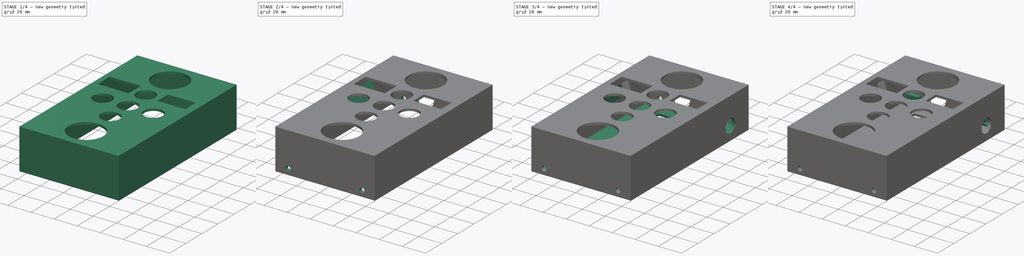
[diagram: build sequence overview — one tinted view per stage of 4, left to right]
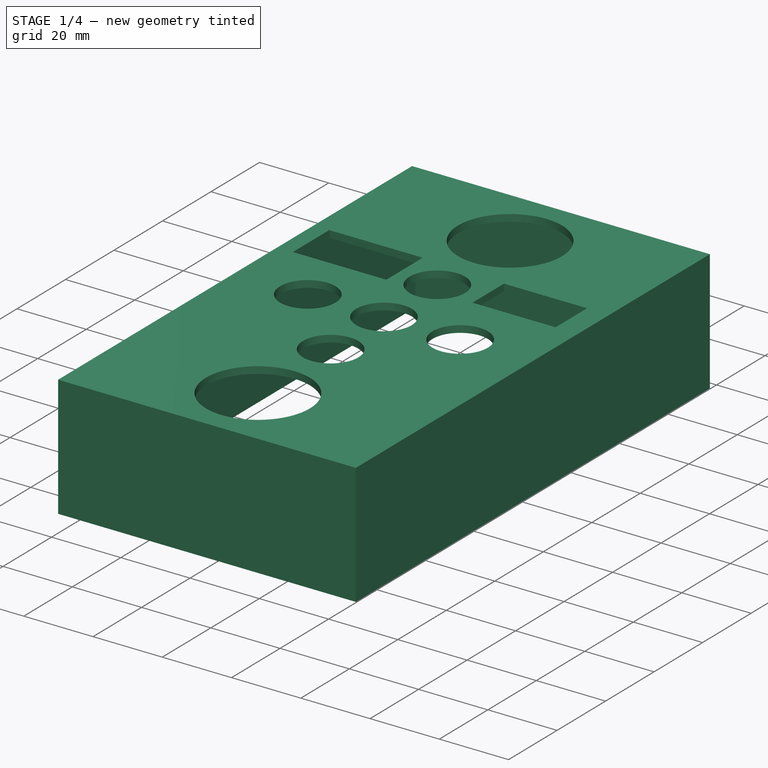
[diagram: stage 1 of 4 — iso view after this stage's code; geometry added in this stage tinted green]
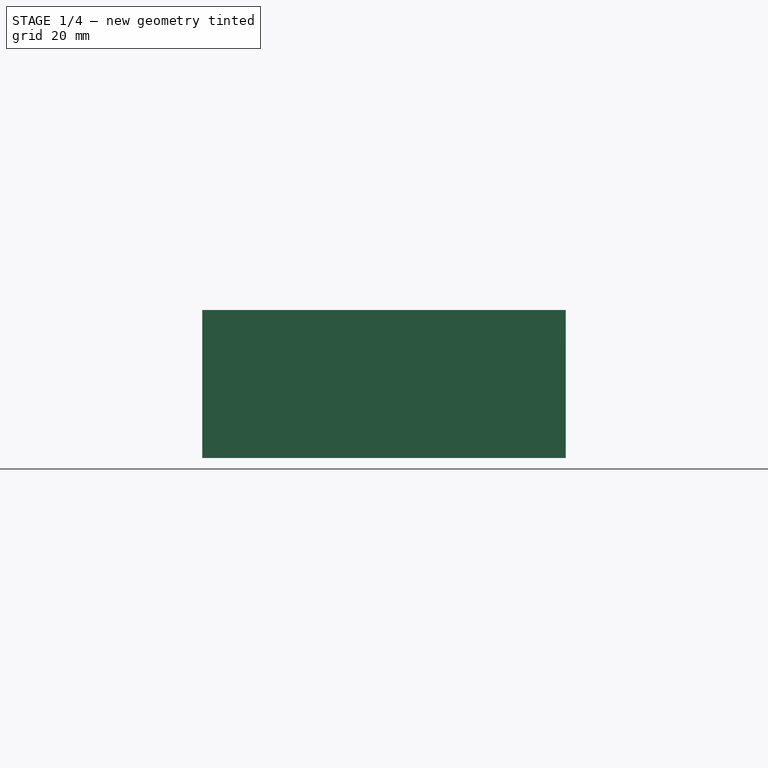
[diagram: stage 1 of 4 — front view after this stage's code; geometry added in this stage tinted green]
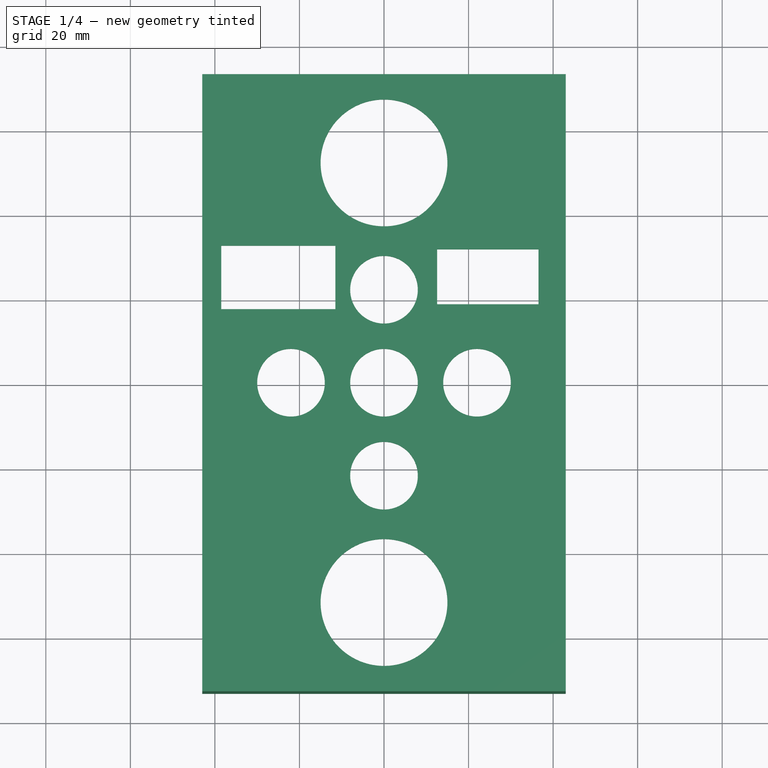
[diagram: stage 1 of 4 — top view after this stage's code; geometry added in this stage tinted green]
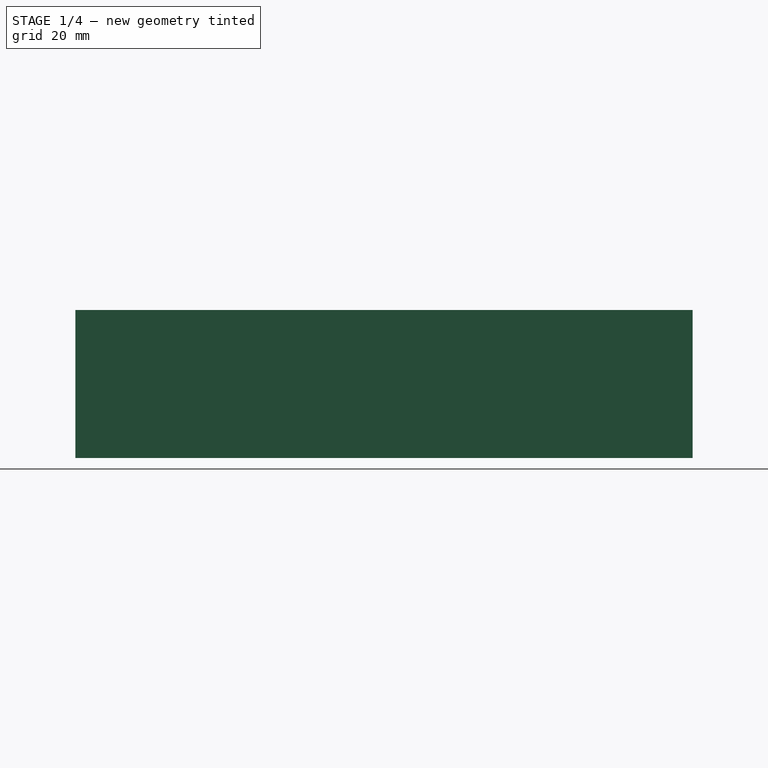
[diagram: stage 1 of 4 — right view after this stage's code; geometry added in this stage tinted green]
FCSTD DOCUMENT  (FreeCAD 1.0R39319 (Git))
Label: Backend
License: All rights reserved
LicenseURL: https://en.wikipedia.org/wiki/All_rights_reserved
objects: Sketcher::SketchObject×11, PartDesign::Pocket×7, PartDesign::Pad×4, PartDesign::Body×2, PartDesign::Chamfer×1, TechDraw::DrawSVGTemplate×1, TechDraw::DrawProjGroupItem×1, TechDraw::DrawPage×1
note: 60 computed .brp shape members not serialized (recipe doc carries the construction recipe); baked Part::Feature solids carry a one-line shape summary decoded from their .brp

FEATURE [Sketcher::SketchObject] Sketch
  ArcFitTolerance = 1e-06
  AttachmentSupport = -> [XY_Plane]
  FullyConstrained = false
  MakeInternals = false
  MapMode = 5
  sketch-geometry (19):
    g0: LineSegment StartX=-43 StartY=73 StartZ=0 EndX=-43 EndY=-73 EndZ=0
    g1: LineSegment StartX=-43 StartY=-73 StartZ=0 EndX=43 EndY=-73 EndZ=0
    g2: LineSegment StartX=43 StartY=-73 StartZ=0 EndX=43 EndY=73 EndZ=0
    g3: LineSegment StartX=43 StartY=73 StartZ=0 EndX=-43 EndY=73 EndZ=0
    g4: Circle CenterX=-22 CenterY=0 CenterZ=0 NormalX=0 NormalY=0 NormalZ=1 AngleXU=0 Radius=8
    g5: Circle CenterX=22 CenterY=0 CenterZ=0 NormalX=0 NormalY=0 NormalZ=1 AngleXU=0 Radius=8
    g6: Circle CenterX=0 CenterY=-22 CenterZ=0 NormalX=0 NormalY=0 NormalZ=1 AngleXU=0 Radius=8
    g7: Circle CenterX=0 CenterY=22 CenterZ=0 NormalX=0 NormalY=0 NormalZ=1 AngleXU=0 Radius=8
    g8: Circle CenterX=0 CenterY=-52 CenterZ=0 NormalX=0 NormalY=0 NormalZ=1 AngleXU=0 Radius=15
    g9: Circle CenterX=0 CenterY=52 CenterZ=0 NormalX=0 NormalY=0 NormalZ=1 AngleXU=0 Radius=15
    g10: LineSegment StartX=-38.5 StartY=32.4009 StartZ=0 EndX=-38.5 EndY=17.4009 EndZ=0
    g11: LineSegment StartX=-38.5 StartY=17.4009 StartZ=0 EndX=-11.5 EndY=17.4009 EndZ=0
    g12: LineSegment StartX=-11.5 StartY=17.4009 StartZ=0 EndX=-11.5 EndY=32.4009 EndZ=0
    g13: LineSegment StartX=-11.5 StartY=32.4009 StartZ=0 EndX=-38.5 EndY=32.4009 EndZ=0
    g14: LineSegment StartX=12.5603 StartY=31.5507 StartZ=0 EndX=12.5603 EndY=18.5507 EndZ=0
    g15: LineSegment StartX=12.5603 StartY=18.5507 StartZ=0 EndX=36.5603 EndY=18.5507 EndZ=0
    g16: LineSegment StartX=36.5603 StartY=18.5507 StartZ=0 EndX=36.5603 EndY=31.5507 EndZ=0
    g17: LineSegment StartX=36.5603 StartY=31.5507 StartZ=0 EndX=12.5603 EndY=31.5507 EndZ=0
    g18: Circle CenterX=0 CenterY=0 CenterZ=0 NormalX=0 NormalY=0 NormalZ=1 AngleXU=0 Radius=8
  constraints (50):
    c: Coincident(g0,g1)
    c: Coincident(g1,g2)
    c: Coincident(g2,g3)
    c: Coincident(g3,g0)
    c: Vertical(g0)
    c: Vertical(g2)
    c: Horizontal(g1)
    c: Horizontal(g3)
    c: DistanceX(g3,g3) = 86
    c: DistanceY(g0,g0) = 146
    c: Symmetric(g0,g1,g-1)
    c: Diameter(g6) = 16
    c: Equal(g5,g7)
    c: Equal(g7,g6)
    c: Equal(g6,g4)
    c: Equal(g8,g9)
    c: Diameter(g9) = 30
    c: Coincident(g10,g11)
    c: Coincident(g11,g12)
    c: Coincident(g12,g13)
    c: Coincident(g13,g10)
    c: Vertical(g10)
    c: Vertical(g12)
    c: Horizontal(g11)
    c: Horizontal(g13)
    c: Distance(g13,g13) = 27
    c: DistanceY(g10,g10) = 15
    c: Coincident(g14,g15)
    c: Coincident(g15,g16)
    c: Coincident(g16,g17)
    c: Coincident(g17,g14)
    c: Vertical(g14)
    c: Vertical(g16)
    c: Horizontal(g15)
    c: Horizontal(g17)
    c: DistanceX(g17,g17) = 24
    c: DistanceY(g14,g14) = 13
    c: Equal(g18,g4)
    c: PointOnObject(g7,g-2)
    c: PointOnObject(g6,g-2)
    c: Horizontal(g18,g5)
    c: Distance(g7,g18) = 22
    c: DistanceY(g6,g18) = 22
    c: DistanceX(g4,g18) = 22
    c: DistanceX(g18,g5) = 22
    c: PointOnObject(g8,g-2)
    c: DistanceY(g8,g6) = 30
    c: PointOnObject(g9,g-2)
    c: DistanceY(g7,g9) = 30
    c: Coincident(g18,g-1)
FEATURE [PartDesign::Pad] Pad
  Direction = (0,0,1)
  Length = 35
  Length2 = 10
  Profile = -> Sketch
  ReferenceAxis = -> Sketch [N_Axis]
  Refine = true
  Suppressed = false
  Type = 0
FEATURE [Sketcher::SketchObject] Sketch001
  ArcFitTolerance = 1e-06
  AttachmentSupport = -> [XY_Plane]
  FullyConstrained = true
  MakeInternals = false
  MapMode = 5
  sketch-geometry (4):
    g0: LineSegment StartX=-40 StartY=70 StartZ=0 EndX=-40 EndY=-70 EndZ=0
    g1: LineSegment StartX=-40 StartY=-70 StartZ=0 EndX=40 EndY=-70 EndZ=0
    g2: LineSegment StartX=40 StartY=-70 StartZ=0 EndX=40 EndY=70 EndZ=0
    g3: LineSegment StartX=40 StartY=70 StartZ=0 EndX=-40 EndY=70 EndZ=0
  constraints (11):
    c: Coincident(g0,g1)
    c: Coincident(g1,g2)
    c: Coincident(g2,g3)
    c: Coincident(g3,g0)
    c: Vertical(g0)
    c: Vertical(g2)
    c: Horizontal(g1)
    c: Horizontal(g3)
    c: DistanceX(g3,g3) = 80
    c: DistanceY(g2,g2) = 140
    c: Symmetric(g0,g1,g-1)
FEATURE [PartDesign::Pocket] Pocket
  BaseFeature = -> Pad
  Direction = (0,0,-1)
  Length = 33
  Length2 = 5
  Profile = -> Sketch001
  ReferenceAxis = -> Sketch001 [N_Axis]
  Refine = true
  Reversed = true
  Suppressed = false
  Type = 0
FEATURE [Sketcher::SketchObject] Sketch002
  ArcFitTolerance = 1e-06
  AttachmentSupport = -> [XY_Plane]
  FullyConstrained = true
  MakeInternals = false
  MapMode = 5
  sketch-geometry (4):
    g0: LineSegment StartX=-39 StartY=54 StartZ=0 EndX=-39 EndY=-54 EndZ=0
    g1: LineSegment StartX=-39 StartY=-54 StartZ=0 EndX=39 EndY=-54 EndZ=0
    g2: LineSegment StartX=39 StartY=-54 StartZ=0 EndX=39 EndY=54 EndZ=0
    g3: LineSegment StartX=39 StartY=54 StartZ=0 EndX=-39 EndY=54 EndZ=0
  constraints (11):
    c: Coincident(g0,g1)
    c: Coincident(g1,g2)
    c: Coincident(g2,g3)
    c: Coincident(g3,g0)
    c: Vertical(g0)
    c: Vertical(g2)
    c: Horizontal(g1)
    c: Horizontal(g3)
    c: DistanceX(g3,g3) = 78
    c: DistanceY(g2,g2) = 108
    c: Symmetric(g0,g1,g-1)
FEATURE [PartDesign::Pocket] Pocket001
  BaseFeature = -> Pocket
  Direction = (0,0,-1)
  Length = 25
  Length2 = 5
  Profile = -> Sketch002
  ReferenceAxis = -> Sketch002 [N_Axis]
  Refine = true
  Reversed = true
  Suppressed = false
  Type = 0
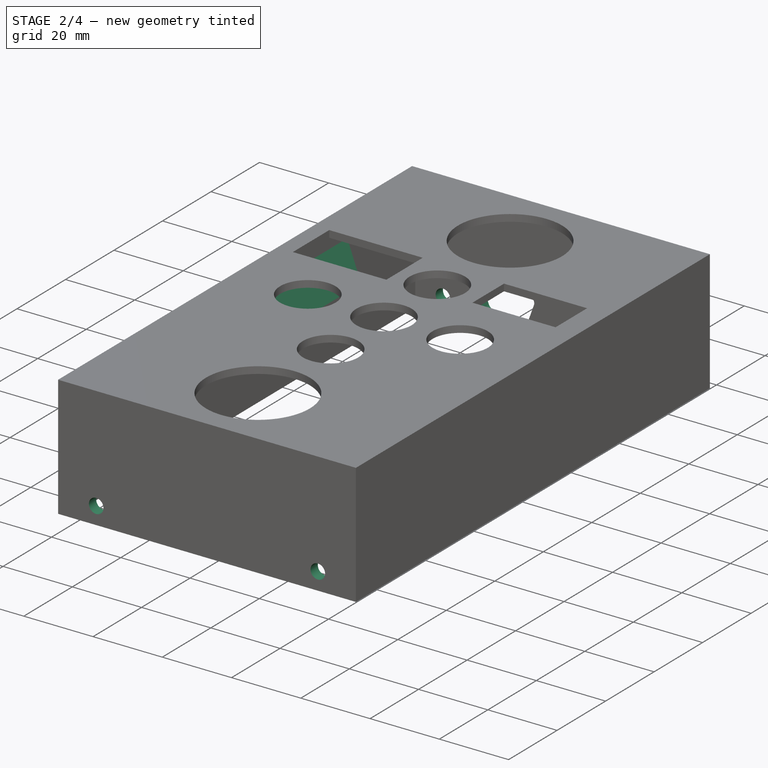
[diagram: stage 2 of 4 — iso view after this stage's code; geometry added in this stage tinted green]
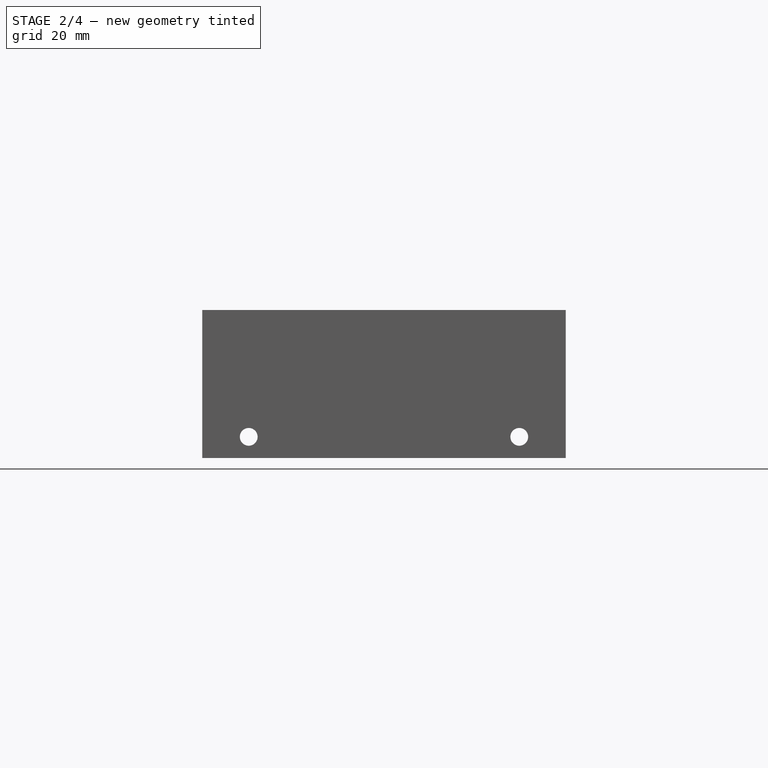
[diagram: stage 2 of 4 — front view after this stage's code; geometry added in this stage tinted green]
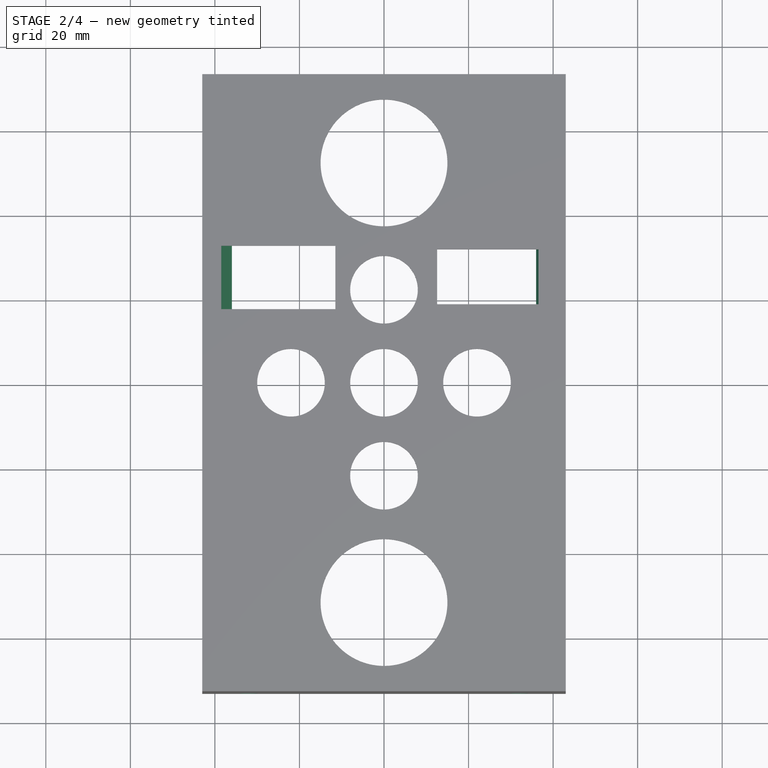
[diagram: stage 2 of 4 — top view after this stage's code; geometry added in this stage tinted green]
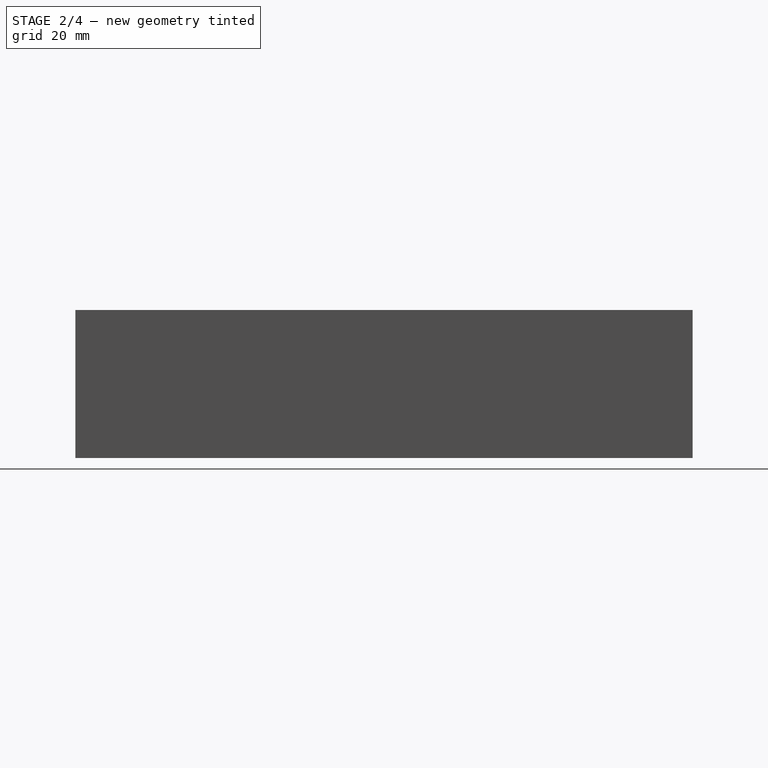
[diagram: stage 2 of 4 — right view after this stage's code; geometry added in this stage tinted green]
FEATURE [Sketcher::SketchObject] Sketch003
  ArcFitTolerance = 1e-06
  AttachmentSupport = -> [XZ_Plane]
  FullyConstrained = false
  MakeInternals = false
  MapMode = 5
  Placement = pos=(0,0,0) rot=(1,0,0;1.5708rad)
  sketch-geometry (9):
    g0: LineSegment StartX=-21.1819 StartY=11.8603 StartZ=0 EndX=-7.18187 EndY=11.8603 EndZ=0
    g1: ArcOfCircle CenterX=-7.18187 CenterY=10.3078 CenterZ=0 NormalX=0 NormalY=0 NormalZ=1 AngleXU=0 Radius=1.55256 StartAngle=5.93412 EndAngle=7.85398
    g2: LineSegment StartX=-5.72294 StartY=9.77677 StartZ=0 EndX=-7.50452 EndY=4.8819 EndZ=0
    g3: ArcOfCircle CenterX=-8.96346 CenterY=5.4129 CenterZ=0 NormalX=0 NormalY=0 NormalZ=1 AngleXU=0 Radius=1.55256 StartAngle=4.71239 EndAngle=5.93412
    g4: LineSegment StartX=-8.96346 StartY=3.86034 StartZ=0 EndX=-19.4003 EndY=3.86034 EndZ=0
    g5: ArcOfCircle CenterX=-19.4003 CenterY=5.4129 CenterZ=0 NormalX=0 NormalY=0 NormalZ=1 AngleXU=0 Radius=1.55256 StartAngle=3.49066 EndAngle=4.71239
    g6: LineSegment StartX=-20.8592 StartY=4.8819 StartZ=0 EndX=-22.6408 EndY=9.77677 EndZ=0
    g7: ArcOfCircle CenterX=-21.1819 CenterY=10.3078 CenterZ=0 NormalX=0 NormalY=0 NormalZ=1 AngleXU=0 Radius=1.55256 StartAngle=1.5708 EndAngle=3.49066
    g8: Circle CenterX=22.7238 CenterY=7.76947 CenterZ=0 NormalX=0 NormalY=0 NormalZ=1 AngleXU=0 Radius=2.55577
  constraints (17):
    c: Horizontal(g0)
    c: Tangent(g0,g1) = 1.5708
    c: Tangent(g2,g3) = 1.5708
    c: Tangent(g3,g4) = 1.5708
    c: Tangent(g4,g5) = 1.5708
    c: Tangent(g5,g6) = 1.5708
    c: Tangent(g6,g7) = 1.5708
    c: Horizontal(g4)
    c: Tangent(g7,g0) = 1.5708
    c: Distance(g0,g0) = 14
    c: DistanceY(g3,g0) = 8
    c: Angle(g4,g6) = 1.91986
    c: Angle(g2,g4) = 1.91986
    c: Equal(g6,g2)
    c: Tangent(g1,g2) = 1.5708
    c: Horizontal(g1,g6)
    c: Equal(g7,g5)
FEATURE [PartDesign::Pocket] Pocket002
  BaseFeature = -> Pocket001
  Direction = (0,1,-2e-16)
  Length = 150
  Length2 = 5
  Profile = -> Sketch003
  ReferenceAxis = -> Sketch003 [N_Axis]
  Refine = true
  Suppressed = false
  Type = 0
FEATURE [Sketcher::SketchObject] Sketch004
  ArcFitTolerance = 1e-06
  AttachmentSupport = -> [XZ_Plane]
  FullyConstrained = true
  MakeInternals = false
  MapMode = 5
  Placement = pos=(0,0,0) rot=(1,0,0;1.5708rad)
  sketch-geometry (2):
    g0: Circle CenterX=-32 CenterY=5 CenterZ=0 NormalX=0 NormalY=0 NormalZ=1 AngleXU=0 Radius=2.1
    g1: Circle CenterX=32 CenterY=5 CenterZ=0 NormalX=0 NormalY=0 NormalZ=1 AngleXU=0 Radius=2.1
  constraints (5):
    c: Equal(g0,g1)
    c: Diameter(g0) = 4.2
    c: Distance(g0,g-2) = 32
    c: Symmetric(g0,g1,g-2)
    c: DistanceY(g-1,g0) = 5
FEATURE [PartDesign::Pocket] Pocket003
  BaseFeature = -> Pocket002
  Direction = (0,1,-2e-16)
  Length = 150
  Length2 = 5
  Midplane = true
  Profile = -> Sketch004
  ReferenceAxis = -> Sketch004 [N_Axis]
  Refine = true
  Suppressed = false
  Type = 0
FEATURE [PartDesign::Body] Body001  label="Körper001"
  AllowCompound = false
  Group = -> [Sketch005,Pad001,Sketch006,Pad002,Sketch007,Pocket004,Chamfer]
  Origin = -> Origin001
  Tip = -> Chamfer
FEATURE [TechDraw::DrawSVGTemplate] Template  label="Vorlage"
  Height = 210
  Orientation = 1
  Template = <path>
  Width = 297
FEATURE [TechDraw::DrawProjGroupItem] View
  CoarseView = false
  Direction = (0,0,-1)
  Focus = 100
  HardHidden = false
  IsoCount = 0
  IsoHidden = false
  IsoVisible = false
  LockPosition = false
  Perspective = false
  Rotation = 0
  RotationVector = (1,0,0)
  ScaleType = 2
  ScrubCount = 1
  SeamHidden = false
  SeamVisible = false
  SmoothHidden = false
  SmoothVisible = true
  Source = -> [Sketch]
  Type = 0
  X = 148.5
  XDirection = (1,0,0)
  Y = 105
FEATURE [TechDraw::DrawPage] Page  label="Seite"
  KeepUpdated = true
  NextBalloonIndex = 1
  ProjectionType = 0
  Template = -> Template
  Views = -> [View]
FEATURE [Sketcher::SketchObject] Sketch008
  ArcFitTolerance = 1e-06
  AttachmentSupport = -> [XZ_Plane]
  FullyConstrained = false
  MakeInternals = false
  MapMode = 5
  Placement = pos=(0,0,0) rot=(1,0,0;1.5708rad)
  sketch-geometry (6):
    g0: LineSegment StartX=-40 StartY=28.8112 StartZ=0 EndX=-40 EndY=18 EndZ=0
    g1: LineSegment StartX=-40 StartY=18 StartZ=0 EndX=-36 EndY=18 EndZ=0
    g2: LineSegment StartX=-36 StartY=18 StartZ=0 EndX=-40 EndY=28.8112 EndZ=0
    g3: LineSegment StartX=40 StartY=18 StartZ=0 EndX=40 EndY=28.8112 EndZ=0
    g4: LineSegment StartX=40 StartY=28.8112 StartZ=0 EndX=36 EndY=18 EndZ=0
    g5: LineSegment StartX=40 StartY=18 StartZ=0 EndX=36 EndY=18 EndZ=0
  constraints (16):
    c: Vertical(g0)
    c: Coincident(g1,g0)
    c: Horizontal(g1)
    c: Coincident(g2,g1)
    c: Coincident(g2,g0)
    c: DistanceY(g-1,g0) = 18
    c: Vertical(g3)
    c: Coincident(g4,g3)
    c: Coincident(g5,g3)
    c: Coincident(g5,g4)
    c: Horizontal(g5)
    c: Equal(g1,g5)
    c: Equal(g3,g0)
    c: Symmetric(g1,g4,g-2)
    c: DistanceX(g0,g3) = 80
    c: Distance(g1,g1) = 4
FEATURE [PartDesign::Pad] Pad003
  BaseFeature = -> Pocket003
  Direction = (0,-1,2e-16)
  Length = 84
  Length2 = 17
  Midplane = true
  Profile = -> Sketch008
  ReferenceAxis = -> Sketch008 [N_Axis]
  Refine = true
  Suppressed = false
  Type = 0
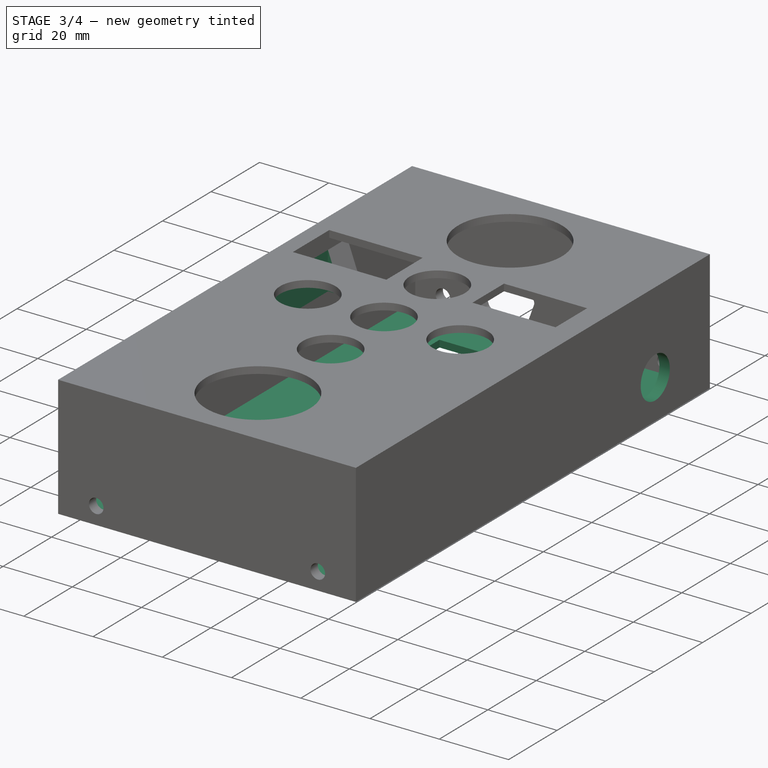
[diagram: stage 3 of 4 — iso view after this stage's code; geometry added in this stage tinted green]
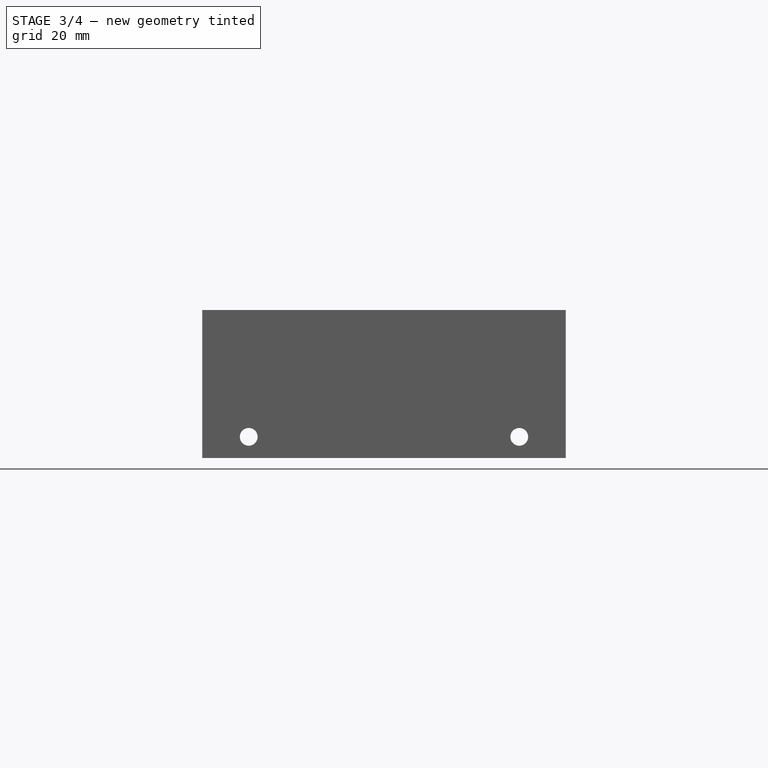
[diagram: stage 3 of 4 — front view after this stage's code; geometry added in this stage tinted green]
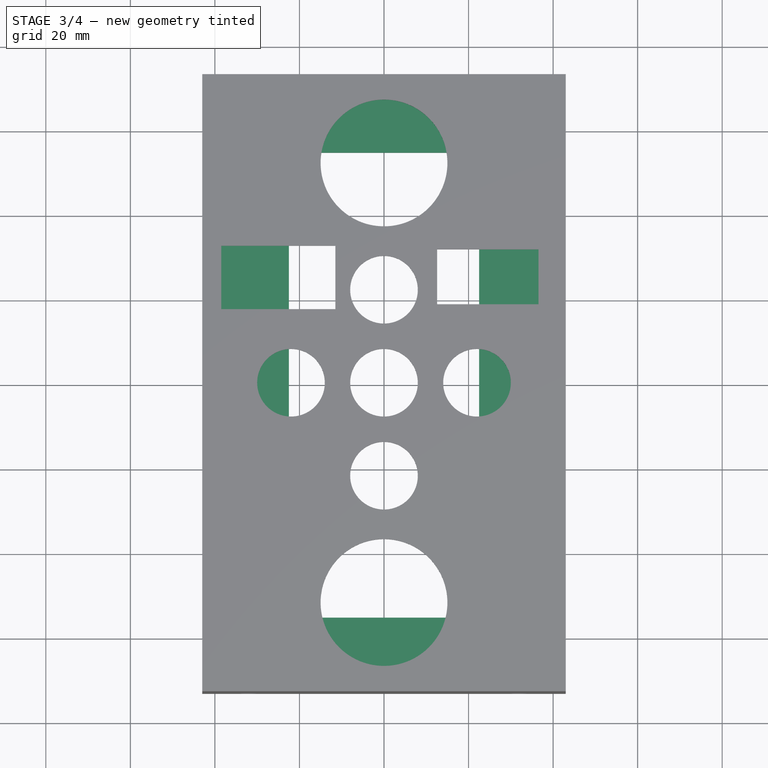
[diagram: stage 3 of 4 — top view after this stage's code; geometry added in this stage tinted green]
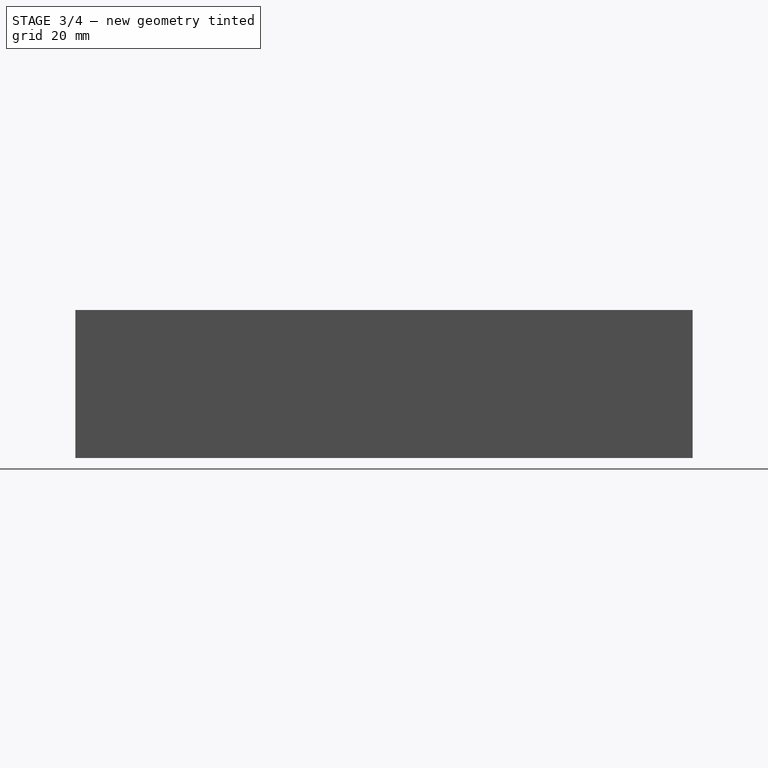
[diagram: stage 3 of 4 — right view after this stage's code; geometry added in this stage tinted green]
FEATURE [Sketcher::SketchObject] Sketch005
  ArcFitTolerance = 1e-06
  AttachmentSupport = -> [XY_Plane001]
  FullyConstrained = true
  MakeInternals = false
  MapMode = 5
  sketch-geometry (12):
    g0: LineSegment StartX=-39.75 StartY=69.75 StartZ=0 EndX=-39.75 EndY=-69.75 EndZ=0
    g1: LineSegment StartX=-39.75 StartY=-69.75 StartZ=0 EndX=39.75 EndY=-69.75 EndZ=0
    g2: LineSegment StartX=39.75 StartY=-69.75 StartZ=0 EndX=39.75 EndY=69.75 EndZ=0
    g3: LineSegment StartX=39.75 StartY=69.75 StartZ=0 EndX=-39.75 EndY=69.75 EndZ=0
    g4: Circle CenterX=-30 CenterY=55 CenterZ=0 NormalX=0 NormalY=0 NormalZ=1 AngleXU=0 Radius=2.5
    g5: Circle CenterX=30 CenterY=55 CenterZ=0 NormalX=0 NormalY=0 NormalZ=1 AngleXU=0 Radius=2.5
    g6: Circle CenterX=-30 CenterY=-55 CenterZ=0 NormalX=0 NormalY=0 NormalZ=1 AngleXU=0 Radius=2.5
    g7: Circle CenterX=30 CenterY=-55 CenterZ=0 NormalX=0 NormalY=0 NormalZ=1 AngleXU=0 Radius=2.5
    g8: LineSegment StartX=-22.5 StartY=55 StartZ=0 EndX=-22.5 EndY=-55 EndZ=0
    g9: LineSegment StartX=-22.5 StartY=-55 StartZ=0 EndX=22.5 EndY=-55 EndZ=0
    g10: LineSegment StartX=22.5 StartY=-55 StartZ=0 EndX=22.5 EndY=55 EndZ=0
    g11: LineSegment StartX=22.5 StartY=55 StartZ=0 EndX=-22.5 EndY=55 EndZ=0
  constraints (33):
    c: Coincident(g0,g1)
    c: Coincident(g1,g2)
    c: Coincident(g2,g3)
    c: Coincident(g3,g0)
    c: Vertical(g0)
    c: Vertical(g2)
    c: Horizontal(g1)
    c: Horizontal(g3)
    c: DistanceX(g3,g3) = 79.5
    c: DistanceY(g0,g0) = 139.5
    c: Symmetric(g0,g1,g-1)
    c: Equal(g6,g4)
    c: Equal(g4,g5)
    c: Equal(g5,g7)
    c: Diameter(g4) = 5
    c: DistanceX(g4,g5) = 60
    c: DistanceY(g7,g5) = 110
    c: Horizontal(g4,g5)
    c: Vertical(g5,g7)
    c: Horizontal(g6,g7)
    c: Vertical(g6,g4)
    c: Symmetric(g6,g5,g-1)
    c: Coincident(g8,g9)
    c: Coincident(g9,g10)
    c: Coincident(g10,g11)
    c: Coincident(g11,g8)
    c: Vertical(g8)
    c: Vertical(g10)
    c: Horizontal(g9)
    c: Horizontal(g11)
    c: Symmetric(g10,g8,g-1)
    c: DistanceX(g11,g11) = 45
    c: DistanceY(g8,g8) = 110
FEATURE [PartDesign::Pad] Pad001
  Direction = (0,0,1)
  Length = 2
  Length2 = 10
  Profile = -> Sketch005
  ReferenceAxis = -> Sketch005 [N_Axis]
  Refine = true
  Suppressed = false
  Type = 0
FEATURE [Sketcher::SketchObject] Sketch009
  ArcFitTolerance = 1e-06
  AttachmentSupport = -> [XY_Plane]
  FullyConstrained = true
  MakeInternals = false
  MapMode = 5
  sketch-geometry (4):
    g0: LineSegment StartX=-40 StartY=34 StartZ=0 EndX=-40 EndY=-34 EndZ=0
    g1: LineSegment StartX=-40 StartY=-34 StartZ=0 EndX=40 EndY=-34 EndZ=0
    g2: LineSegment StartX=40 StartY=-34 StartZ=0 EndX=40 EndY=34 EndZ=0
    g3: LineSegment StartX=40 StartY=34 StartZ=0 EndX=-40 EndY=34 EndZ=0
  constraints (11):
    c: Coincident(g0,g1)
    c: Coincident(g1,g2)
    c: Coincident(g2,g3)
    c: Coincident(g3,g0)
    c: Vertical(g0)
    c: Vertical(g2)
    c: Horizontal(g1)
    c: Horizontal(g3)
    c: DistanceX(g3,g3) = 80
    c: Symmetric(g0,g1,g-1)
    c: DistanceY(g0,g0) = 68
FEATURE [PartDesign::Pocket] Pocket005
  BaseFeature = -> Pad003
  Direction = (0,0,-1)
  Length = 30
  Length2 = 5
  Profile = -> Sketch009
  ReferenceAxis = -> Sketch009 [N_Axis]
  Refine = true
  Reversed = true
  Suppressed = false
  Type = 0
FEATURE [Sketcher::SketchObject] Sketch010
  ArcFitTolerance = 1e-06
  AttachmentSupport = -> [YZ_Plane]
  FullyConstrained = false
  MakeInternals = false
  MapMode = 5
  Placement = pos=(0,0,0) rot=(0.57735,0.57735,0.57735;2.0944rad)
  sketch-geometry (1):
    g0: Circle CenterX=50.466 CenterY=11.4444 CenterZ=0 NormalX=0 NormalY=0 NormalZ=1 AngleXU=0 Radius=6
  constraints (1):
    c: Diameter(g0) = 12
FEATURE [PartDesign::Pocket] Pocket006
  BaseFeature = -> Pocket005
  Direction = (-1,0,0)
  Length = 50
  Length2 = 5
  Profile = -> Sketch010
  ReferenceAxis = -> Sketch010 [N_Axis]
  Refine = true
  Reversed = true
  Suppressed = false
  Type = 0
FEATURE [PartDesign::Body] Body  label="Körper"
  AllowCompound = false
  Group = -> [Sketch,Pad,Sketch001,Pocket,Sketch002,Pocket001,Sketch003,Pocket002,Sketch004,Pocket003,Sketch008,Pad003,Sketch009,Pocket005,Sketch010,Pocket006]
  Origin = -> Origin
  Tip = -> Pocket006
note: 1 file-system path scrubbed to <path> (originals preserved in the JSON sidecar)
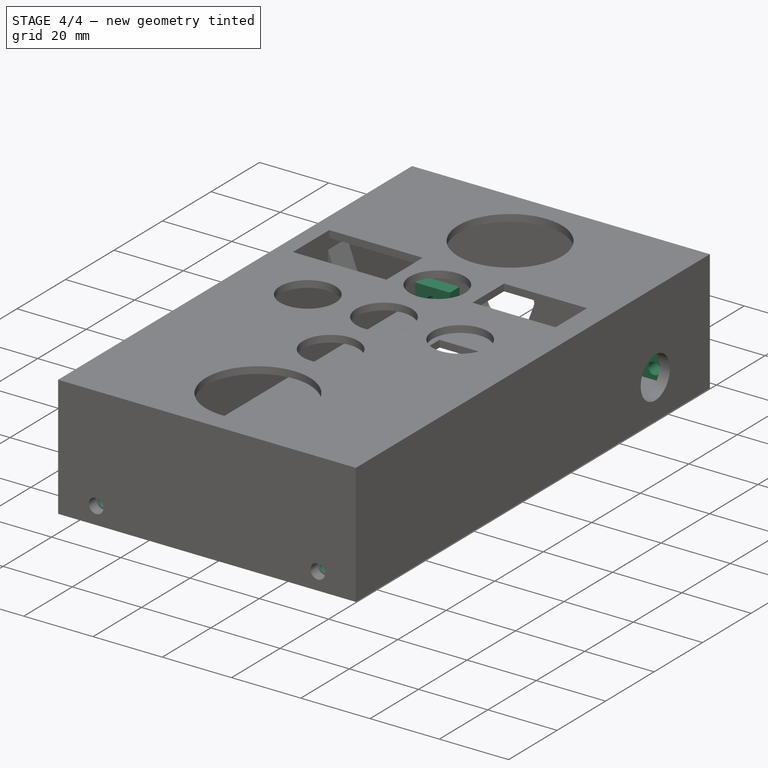
[diagram: stage 4 of 4 — iso view after this stage's code; geometry added in this stage tinted green]
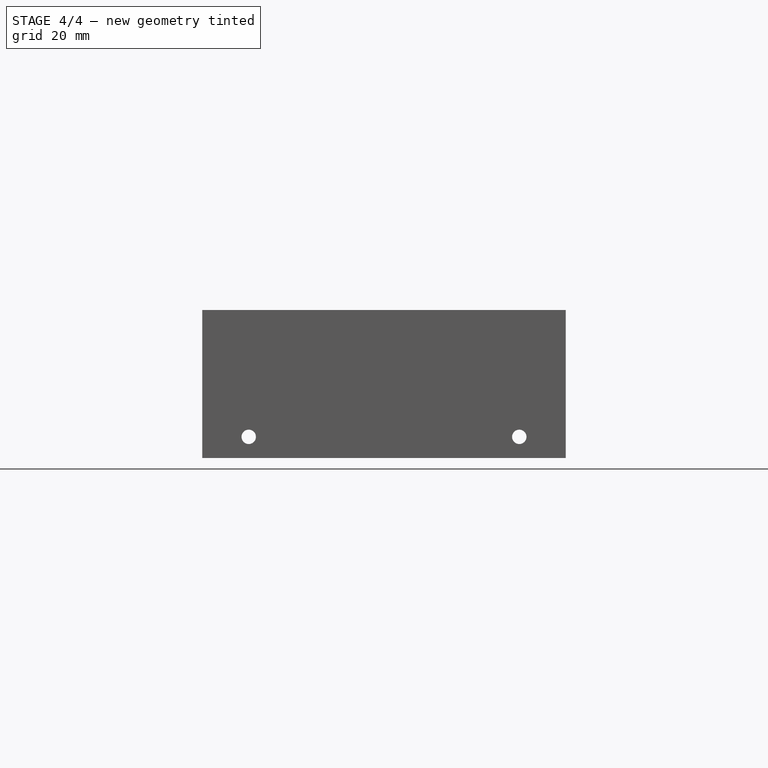
[diagram: stage 4 of 4 — front view after this stage's code; geometry added in this stage tinted green]
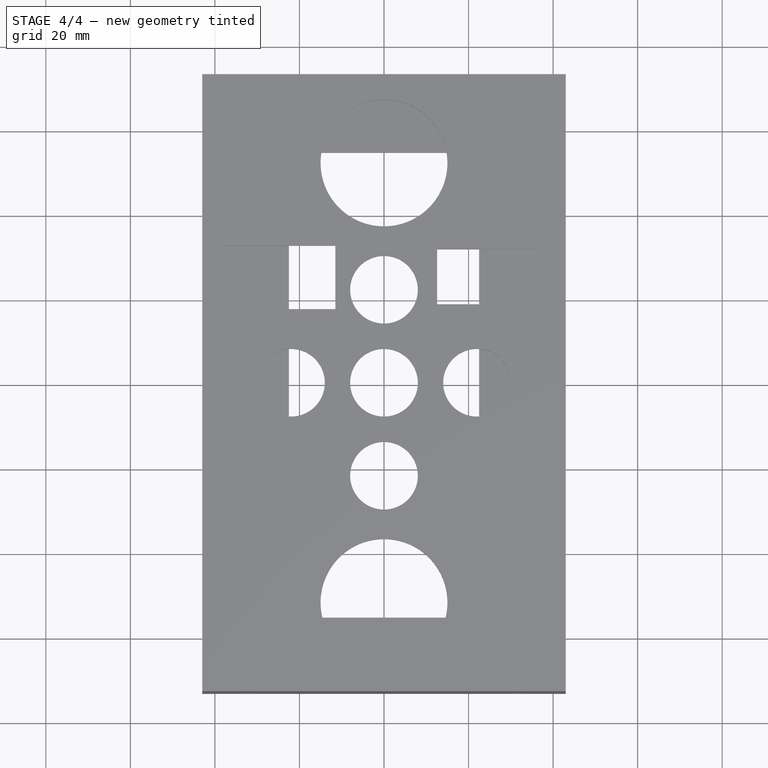
[diagram: stage 4 of 4 — top view after this stage's code; geometry added in this stage tinted green]
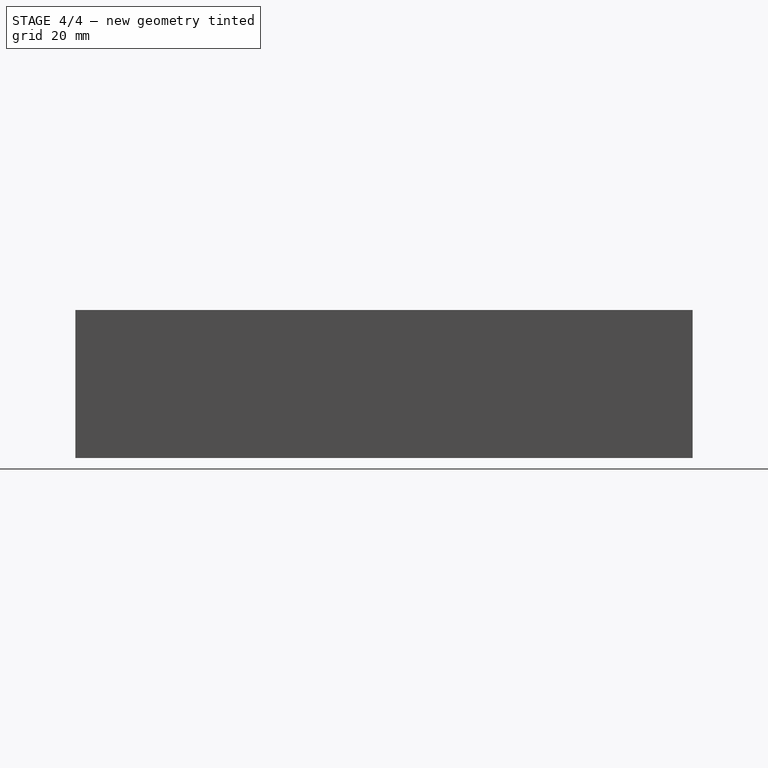
[diagram: stage 4 of 4 — right view after this stage's code; geometry added in this stage tinted green]
FEATURE [Sketcher::SketchObject] Sketch006
  ArcFitTolerance = 1e-06
  AttachmentSupport = -> [XY_Plane001]
  FullyConstrained = true
  MakeInternals = false
  MapMode = 5
  sketch-geometry (16):
    g0: LineSegment StartX=-37 StartY=69.75 StartZ=0 EndX=-37 EndY=65.75 EndZ=0
    g1: LineSegment StartX=-37 StartY=65.75 StartZ=0 EndX=-27 EndY=65.75 EndZ=0
    g2: LineSegment StartX=-27 StartY=65.75 StartZ=0 EndX=-27 EndY=69.75 EndZ=0
    g3: LineSegment StartX=-27 StartY=69.75 StartZ=0 EndX=-37 EndY=69.75 EndZ=0
    g4: LineSegment StartX=-37 StartY=-65.75 StartZ=0 EndX=-37 EndY=-69.75 EndZ=0
    g5: LineSegment StartX=-37 StartY=-69.75 StartZ=0 EndX=-27 EndY=-69.75 EndZ=0
    g6: LineSegment StartX=-27 StartY=-69.75 StartZ=0 EndX=-27 EndY=-65.75 EndZ=0
    g7: LineSegment StartX=-27 StartY=-65.75 StartZ=0 EndX=-37 EndY=-65.75 EndZ=0
    g8: LineSegment StartX=27 StartY=-65.75 StartZ=0 EndX=27 EndY=-69.75 EndZ=0
    g9: LineSegment StartX=27 StartY=-69.75 StartZ=0 EndX=37 EndY=-69.75 EndZ=0
    g10: LineSegment StartX=37 StartY=-69.75 StartZ=0 EndX=37 EndY=-65.75 EndZ=0
    g11: LineSegment StartX=37 StartY=-65.75 StartZ=0 EndX=27 EndY=-65.75 EndZ=0
    g12: LineSegment StartX=27 StartY=69.75 StartZ=0 EndX=27 EndY=65.75 EndZ=0
    g13: LineSegment StartX=27 StartY=65.75 StartZ=0 EndX=37 EndY=65.75 EndZ=0
    g14: LineSegment StartX=37 StartY=65.75 StartZ=0 EndX=37 EndY=69.75 EndZ=0
    g15: LineSegment StartX=37 StartY=69.75 StartZ=0 EndX=27 EndY=69.75 EndZ=0
  constraints (46):
    c: Coincident(g0,g1)
    c: Coincident(g1,g2)
    c: Coincident(g2,g3)
    c: Coincident(g3,g0)
    c: Vertical(g0)
    c: Vertical(g2)
    c: Horizontal(g1)
    c: Horizontal(g3)
    c: Coincident(g4,g5)
    c: Coincident(g5,g6)
    c: Coincident(g6,g7)
    c: Coincident(g7,g4)
    c: Vertical(g4)
    c: Vertical(g6)
    c: Horizontal(g5)
    c: Horizontal(g7)
    c: Coincident(g8,g9)
    c: Coincident(g9,g10)
    c: Coincident(g10,g11)
    c: Coincident(g11,g8)
    c: Vertical(g8)
    c: Vertical(g10)
    c: Horizontal(g9)
    c: Horizontal(g11)
    c: Coincident(g12,g13)
    c: Coincident(g13,g14)
    c: Coincident(g14,g15)
    c: Coincident(g15,g12)
    c: Vertical(g12)
    c: Vertical(g14)
    c: Horizontal(g13)
    c: Horizontal(g15)
    c: Equal(g15,g3)
    c: Equal(g3,g7)
    c: Equal(g7,g11)
    c: Equal(g2,g12)
    c: Equal(g12,g8)
    c: Equal(g8,g6)
    c: DistanceX(g3,g3) = 10
    c: DistanceY(g2,g2) = 4
    c: DistanceY(g9,g14) = 139.5
    c: Horizontal(g2,g12)
    c: Vertical(g4,g0)
    c: Symmetric(g1,g8,g-1)
    c: Symmetric(g6,g12,g-1)
    c: DistanceX(g6,g8) = 54
FEATURE [PartDesign::Pad] Pad002
  BaseFeature = -> Pad001
  Direction = (0,0,1)
  Length = 9
  Length2 = 10
  Profile = -> Sketch006
  ReferenceAxis = -> Sketch006 [N_Axis]
  Refine = true
  Suppressed = false
  Type = 0
FEATURE [Sketcher::SketchObject] Sketch007
  ArcFitTolerance = 1e-06
  AttachmentSupport = -> [XZ_Plane001]
  FullyConstrained = true
  MakeInternals = false
  MapMode = 5
  Placement = pos=(0,0,0) rot=(1,0,0;1.5708rad)
  sketch-geometry (2):
    g0: Circle CenterX=-32 CenterY=5 CenterZ=0 NormalX=0 NormalY=0 NormalZ=1 AngleXU=0 Radius=1.7
    g1: Circle CenterX=32 CenterY=5 CenterZ=0 NormalX=0 NormalY=0 NormalZ=1 AngleXU=0 Radius=1.7
  constraints (5):
    c: Equal(g0,g1)
    c: Diameter(g0) = 3.4
    c: Symmetric(g0,g1,g-2)
    c: DistanceX(g0,g-1) = 32
    c: DistanceY(g-1,g0) = 5
FEATURE [PartDesign::Pocket] Pocket004
  BaseFeature = -> Pad002
  Direction = (0,1,-2e-16)
  Length = 1115
  Length2 = 5
  Midplane = true
  Profile = -> Sketch007
  ReferenceAxis = -> Sketch007 [N_Axis]
  Refine = true
  Suppressed = false
  Type = 0
FEATURE [PartDesign::Chamfer] Chamfer
  Angle = 45
  Base = -> Pocket004 [Edge53,Edge55,Edge60,Edge54]
  BaseFeature = -> Pocket004
  ChamferType = 0
  FlipDirection = false
  Refine = true
  Size = 1
  Size2 = 1
  SupportTransform = false
  Suppressed = false
  UseAllEdges = false
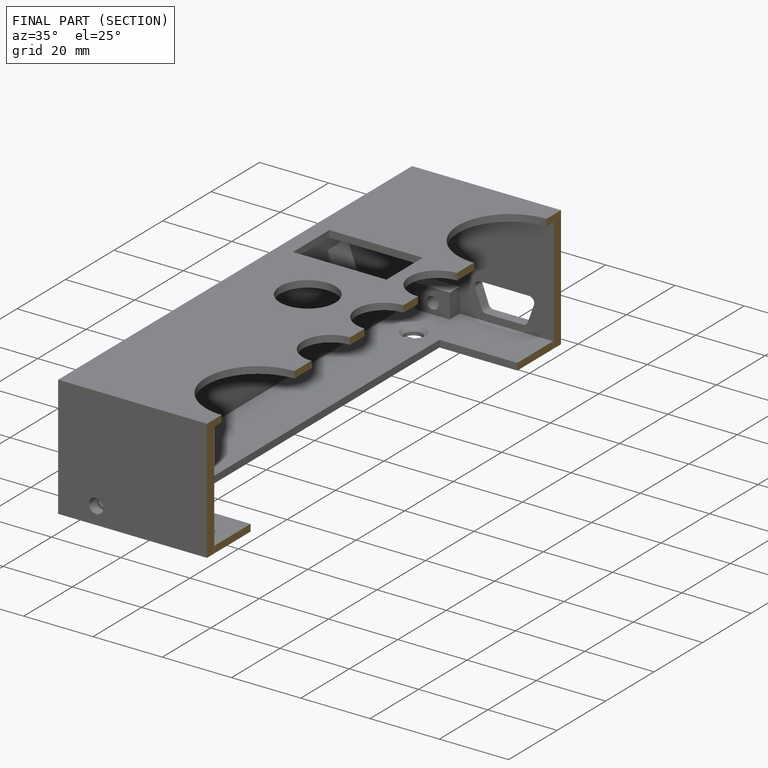
[diagram: finished part — half-section view (interior)]
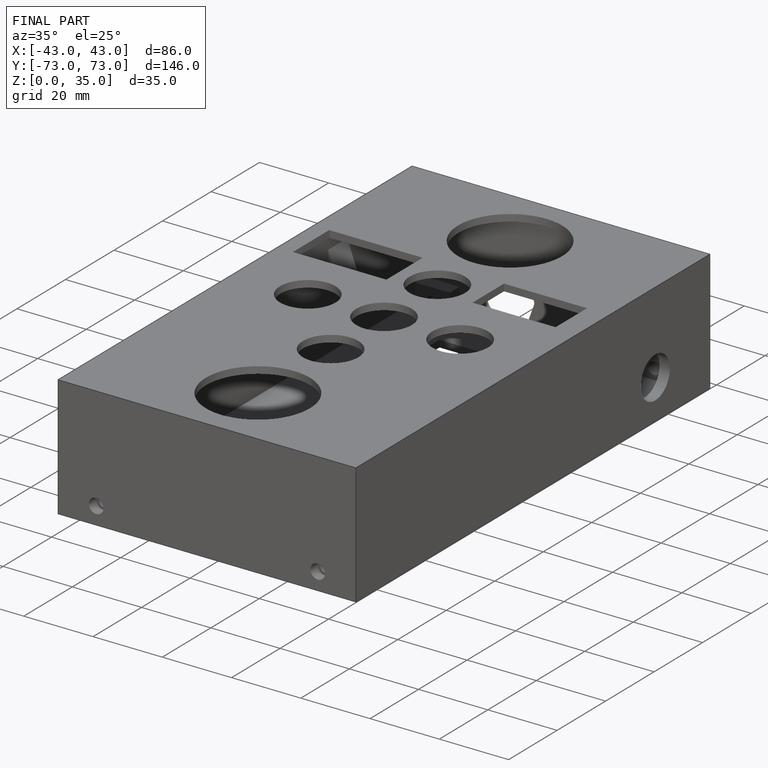
[diagram: finished part — iso view with bounding-box wireframe]
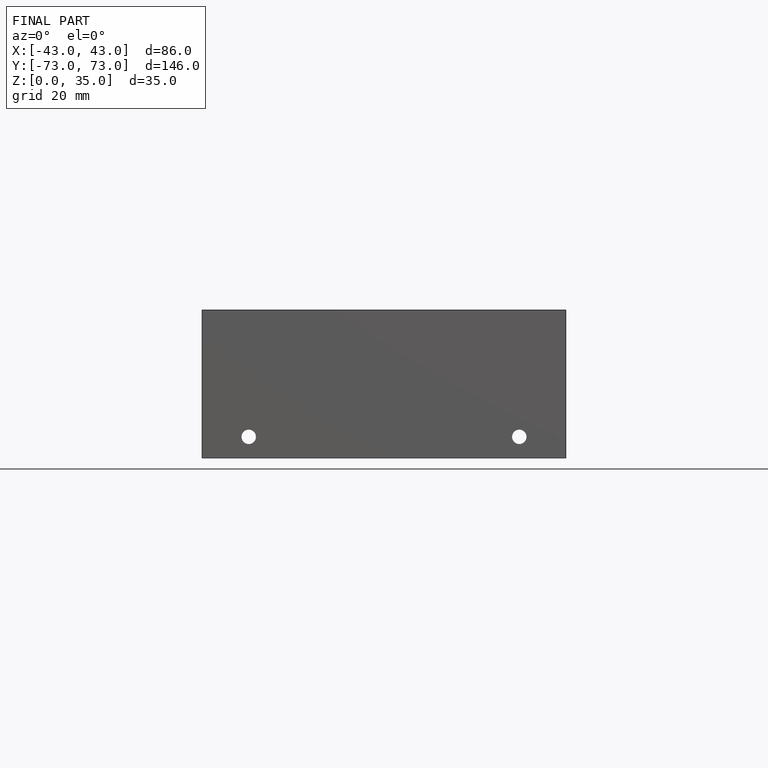
[diagram: finished part — front view with bounding-box wireframe]
